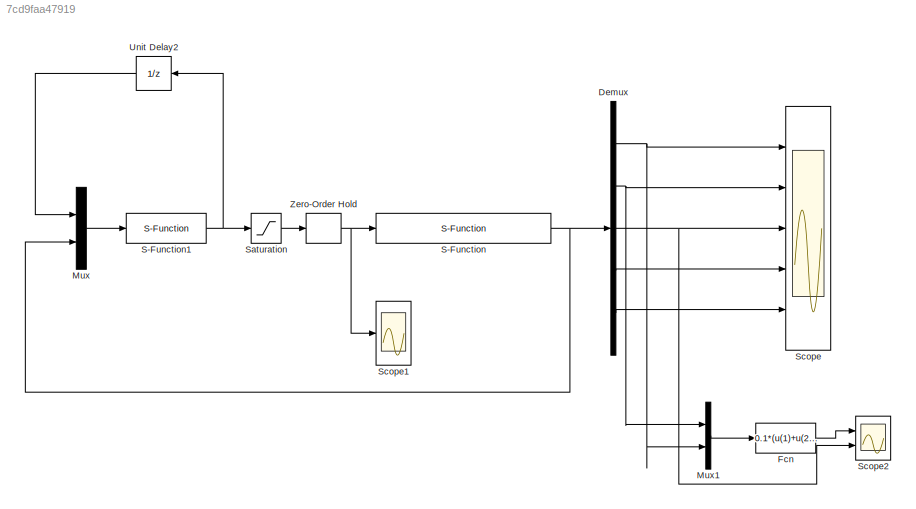
MODEL slx_7cd9faa47919
KIND model
WORKSPACE source: MAT-file member
WORKSPACE spe_config = []
BLOCK [Demux] Demux
  DisplayOption = bar
  Outputs = 5
  Ports = [1, 5]
BLOCK [Fcn] Fcn
  Expr = 0.1*(u(1)+u(2))
  SampleTime = 0.06
BLOCK [Mux] Mux
  DisplayOption = bar
  Inputs = 2
  Ports = [2, 1]
BLOCK [Mux] Mux1
  DisplayOption = bar
  Inputs = 2
  Ports = [2, 1]
BLOCK [S-Function] S-Function
  EnableBusSupport = off
  FunctionName = S_Rover_skid_steer
  Ports = [1, 1]
BLOCK [S-Function] S-Function1
  EnableBusSupport = off
  FunctionName = S_MPC_SS
  Parameters = Q,M,N,N1,Nu,Rw,Qw,r
  Ports = [1, 1]
BLOCK [Saturate] Saturation
  InputPortMap = u0
  LowerLimit = -100
  Ports = [1, 1]
  UpperLimit = 100
BLOCK [Scope] Scope
  DataFormat = StructureWithTime
  Floating = off
  LimitDataPoints = off
  NumInputPorts = 5
  Ports = [5]
  SampleTime = 0
  ShowLegends = off
  TimeRange = 10
  YMax = 1.5~0.9~0.3~5~10
  YMin = -1~-0.3~-0.4~-2~1
BLOCK [Scope] Scope1
  DataFormat = StructureWithTime
  Floating = off
  LimitDataPoints = off
  NumInputPorts = 1
  Ports = [1]
  SampleTime = 0
  SaveName = ScopeData1
  ShowLegends = off
  YMax = 1.5
  YMin = -1
BLOCK [Scope] Scope2
  DataFormat = StructureWithTime
  Floating = off
  LimitDataPoints = off
  NumInputPorts = 2
  Ports = [2]
  SampleTime = 0
  SaveName = ScopeData2
  ShowLegends = off
  YMax = 1.1~0.8
  YMin = -0.2~0
BLOCK [UnitDelay] Unit Delay2
  InputProcessing = Elements as channels (sample based)
  SampleTime = Ts
BLOCK [ZeroOrderHold] Zero-Order Hold
  SampleTime = 0.06
NET Demux:1 -> Mux1:2, Scope:1
NET Demux:2 -> Mux1:1, Scope:2
NET Demux:3 -> Scope2:2, Scope:3
LINE Demux:4 -> Scope:4
LINE Demux:5 -> Scope:5
LINE Fcn:1 -> Scope2:1
LINE Mux1:1 -> Fcn:1
LINE Mux:1 -> S-Function1:1
NET S-Function1:1 -> Saturation:1, Unit Delay2:1
NET S-Function:1 -> Demux:1, Mux:2
LINE Saturation:1 -> Zero-Order Hold:1
LINE Unit Delay2:1 -> Mux:1
NET Zero-Order Hold:1 -> S-Function:1, Scope1:1
note: NET lines group one-source signal fan-out (src -> all destinations, sorted); 1:1 wires keep LINE
